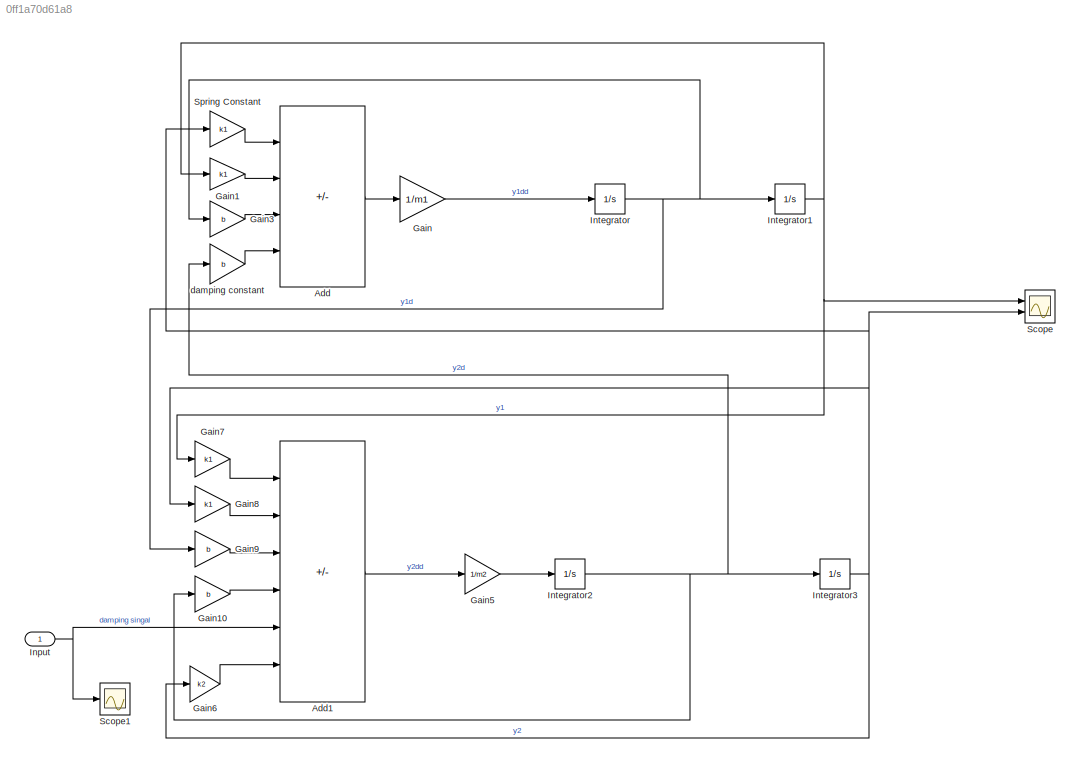
MODEL slx_0ff1a70d61a8
KIND model
CONFIG AbsTol = auto
CONFIG EnableMultiTasking = off
CONFIG FixedStep = auto
CONFIG InitFcn = t = [1:100]';
CONFIG MaxStep = auto
CONFIG MinStep = auto
CONFIG PreLoadFcn = load('data.mat')\n\n
CONFIG RelTol = 1e-3
CONFIG SampleTimeConstraint = Unconstrained
CONFIG SolverName = VariableStepAuto
CONFIG StartTime = 0.0
CONFIG StopTime = 100
WORKSPACE source: mxarray member
WORKSPACE b = 50
WORKSPACE k1 = 25
WORKSPACE k2 = 50
WORKSPACE m1 = 100
WORKSPACE m2 = 20
WORKSPACE road = [0 0 0 1 1 1 1 0 0 0]
BLOCK [Sum] Add
  IconShape = rectangular
  Inputs = +--+
  Ports = [4, 1]
BLOCK [Sum] Add1
  IconShape = rectangular
  Inputs = +-+-+-
  Ports = [6, 1]
BLOCK [Gain] Gain
  Gain = 1/m1
BLOCK [Gain] Gain1
  Gain = k1
BLOCK [Gain] Gain10
  Gain = b
BLOCK [Gain] Gain3
  Gain = b
BLOCK [Gain] Gain5
  Gain = 1/m2
BLOCK [Gain] Gain6
  Gain = k2
BLOCK [Gain] Gain7
  Gain = k1
BLOCK [Gain] Gain8
  Gain = k1
BLOCK [Gain] Gain9
  Gain = b
BLOCK [Inport] Input
BLOCK [Integrator] Integrator
  Ports = [1, 1]
BLOCK [Integrator] Integrator1
  Ports = [1, 1]
BLOCK [Integrator] Integrator2
  Ports = [1, 1]
BLOCK [Integrator] Integrator3
  Ports = [1, 1]
BLOCK [Scope] Scope
  Floating = off
  NumInputPorts = 2
  Ports = [2]
  ScopeSpecificationString = Simulink.scopes.TimeScopeBlockCfg('CurrentConfiguration', extmgr.ConfigurationSet(extmgr.Configuration('Core','General UI',true),extmgr.Configuration('Core','Source UI',true),extmgr.Configuration('Sources','WiredSimulink',true),extmgr.Configuration('Visuals','Time Domain',true,'SerializedDisplays',{struct('MinYLimReal','-0.00997','MaxYLimReal','0.03','YLabelReal','','MinYLimMag','0.00000','MaxYLim...<+1386ch>
BLOCK [Scope] Scope1
  Floating = off
  NumInputPorts = 1
  Ports = [1]
  ScopeSpecificationString = Simulink.scopes.TimeScopeBlockCfg('CurrentConfiguration', extmgr.ConfigurationSet(extmgr.Configuration('Core','General UI',true),extmgr.Configuration('Core','Source UI',true),extmgr.Configuration('Sources','WiredSimulink',true,'DataLoggingVariableName','ScopeData1'),extmgr.Configuration('Visuals','Time Domain',true,'SerializedDisplays',{struct('MinYLimReal','-0.12477','MaxYLimReal','1.12292','YLab...<+1373ch>
BLOCK [Gain] Spring Constant
  Gain = k1
BLOCK [Gain] damping constant
  Gain = b
LINE Add1:1 -> Gain5:1
LINE Add:1 -> Gain:1
LINE Gain10:1 -> Add1:4
LINE Gain1:1 -> Add:2
LINE Gain3:1 -> Add:3
LINE Gain5:1 -> Integrator2:1
LINE Gain6:1 -> Add1:6
LINE Gain7:1 -> Add1:1
LINE Gain8:1 -> Add1:2
LINE Gain9:1 -> Add1:3
LINE Gain:1 -> Integrator:1
NET Input:1 -> Add1:5, Scope1:1
NET Integrator1:1 -> Gain1:1, Gain7:1, Scope:1
NET Integrator2:1 -> Gain10:1, Integrator3:1, damping constant:1
NET Integrator3:1 -> Gain6:1, Gain8:1, Scope:2, Spring Constant:1
NET Integrator:1 -> Gain3:1, Gain9:1, Integrator1:1
LINE Spring Constant:1 -> Add:1
LINE damping constant:1 -> Add:4
note: NET lines group one-source signal fan-out (src -> all destinations, sorted); 1:1 wires keep LINE
